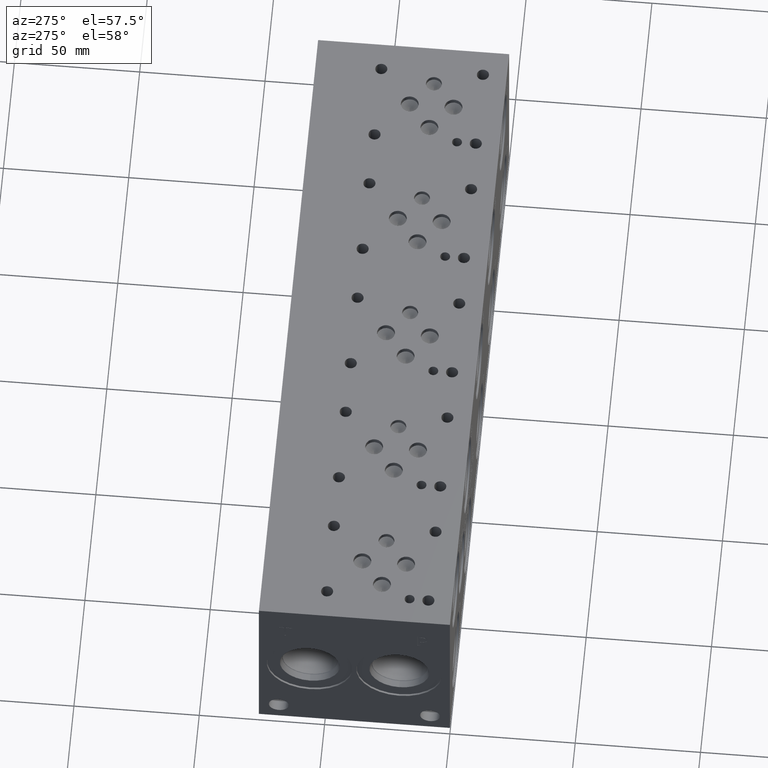
[diagram: clean part render]
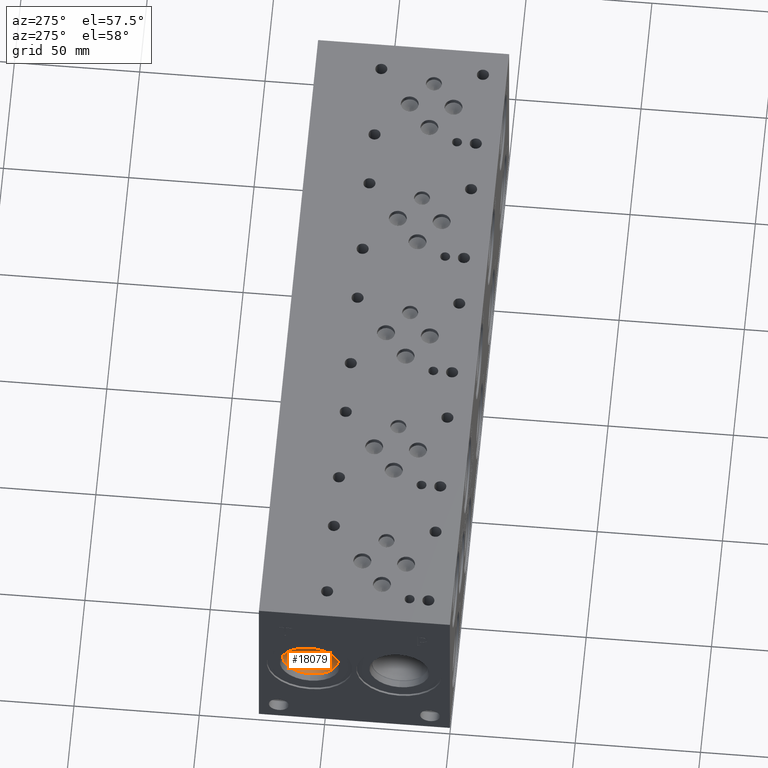
[diagram: same view with one face highlighted and labeled with its STEP entity id]
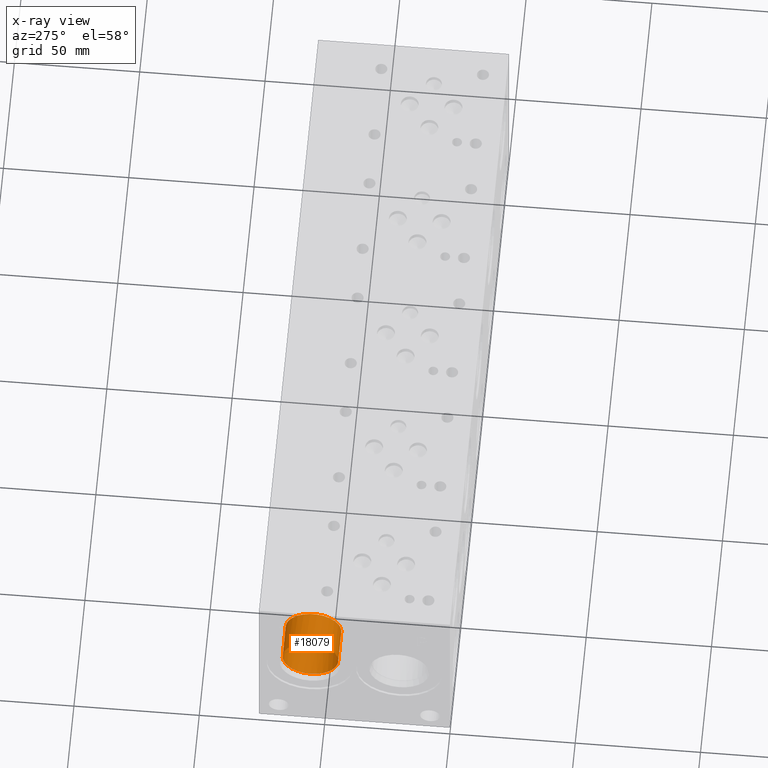
[diagram: x-ray of the same camera — body ghosted, the highlighted face saturated]
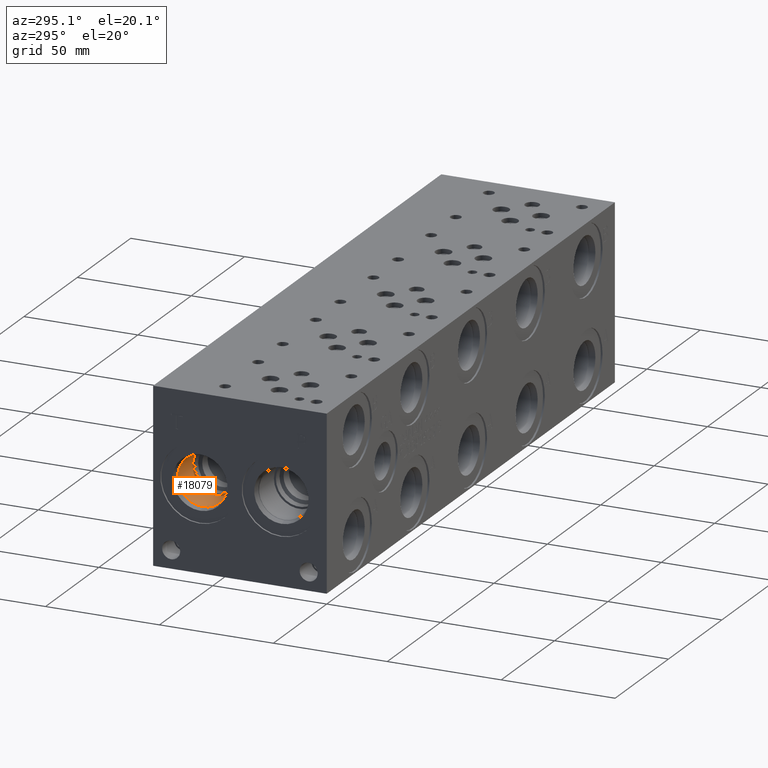
[diagram: same view with one face highlighted and labeled with its STEP entity id]
A machine part, auxiliary view. The second image highlights one B-rep face of the part: STEP entity #18079.
The next image is the same camera in x-ray: the body ghosted, the highlighted face saturated — about 0% of this face is hidden behind the body in this view.
A second angle (auxiliary view) of the same face is appended — the face is thin or edge-on in the first view.
In plain terms, the highlighted cylindrical surface (bore or boss wall) has radius 11.115 mm, axis along (-1, 0, 0).
Its self-contained STEP definition (entity closure, byte-faithful):
#152=CYLINDRICAL_SURFACE('',#18962,11.115);
#396=CIRCLE('',#18932,11.115);
#397=CIRCLE('',#18933,11.115);
#413=CIRCLE('',#18959,11.115);
#414=CIRCLE('',#18960,11.115);
#2397=FACE_OUTER_BOUND('',#3445,.T.);
#3445=EDGE_LOOP('',(#14925,#14926,#14927,#14928,#14929,#14930));
#5115=LINE('',#30596,#6645);
#6645=VECTOR('',#22184,11.115);
#8129=VERTEX_POINT('',#30534);
#8130=VERTEX_POINT('',#30536);
#8148=VERTEX_POINT('',#30589);
#8149=VERTEX_POINT('',#30590);
#10515=EDGE_CURVE('',#8130,#8129,#396,.T.);
#10516=EDGE_CURVE('',#8129,#8130,#397,.T.);
#10540=EDGE_CURVE('',#8148,#8149,#413,.T.);
#10541=EDGE_CURVE('',#8149,#8148,#414,.T.);
#10543=EDGE_CURVE('',#8130,#8149,#5115,.T.);
#14925=ORIENTED_EDGE('',*,*,#10515,.T.);
#14926=ORIENTED_EDGE('',*,*,#10516,.T.);
#14927=ORIENTED_EDGE('',*,*,#10543,.T.);
#14928=ORIENTED_EDGE('',*,*,#10540,.F.);
#14929=ORIENTED_EDGE('',*,*,#10541,.F.);
#14930=ORIENTED_EDGE('',*,*,#10543,.F.);
#18079=ADVANCED_FACE('',(#2397),#152,.F.);
#18932=AXIS2_PLACEMENT_3D('',#30537,#22114,#22115);
#18933=AXIS2_PLACEMENT_3D('',#30538,#22116,#22117);
#18959=AXIS2_PLACEMENT_3D('',#30591,#22176,#22177);
#18960=AXIS2_PLACEMENT_3D('',#30592,#22178,#22179);
#18962=AXIS2_PLACEMENT_3D('',#30595,#22182,#22183);
#22114=DIRECTION('center_axis',(-1.,0.,0.));
#22115=DIRECTION('ref_axis',(0.,1.,0.));
#22116=DIRECTION('center_axis',(-1.,0.,0.));
#22117=DIRECTION('ref_axis',(0.,1.,0.));
#22176=DIRECTION('center_axis',(-1.,0.,0.));
#22177=DIRECTION('ref_axis',(0.,1.,0.));
#22178=DIRECTION('center_axis',(-1.,0.,0.));
#22179=DIRECTION('ref_axis',(0.,1.,0.));
#22182=DIRECTION('center_axis',(-1.,0.,0.));
#22183=DIRECTION('ref_axis',(0.,1.,0.));
#22184=DIRECTION('',(1.,0.,0.));
#30534=CARTESIAN_POINT('',(3.4646,55.9562,26.985));
#30536=CARTESIAN_POINT('',(3.4646,44.8412,38.1));
#30537=CARTESIAN_POINT('Origin',(3.4646,55.9562,38.1));
#30538=CARTESIAN_POINT('Origin',(3.4646,55.9562,38.1));
#30589=CARTESIAN_POINT('',(17.4498,67.0712,38.1));
#30590=CARTESIAN_POINT('',(17.4498,44.8412,38.1));
#30591=CARTESIAN_POINT('Origin',(17.4498,55.9562,38.1));
#30592=CARTESIAN_POINT('Origin',(17.4498,55.9562,38.1));
#30595=CARTESIAN_POINT('Origin',(8.7249,55.9562,38.1));
#30596=CARTESIAN_POINT('',(8.7249,44.8412,38.1));